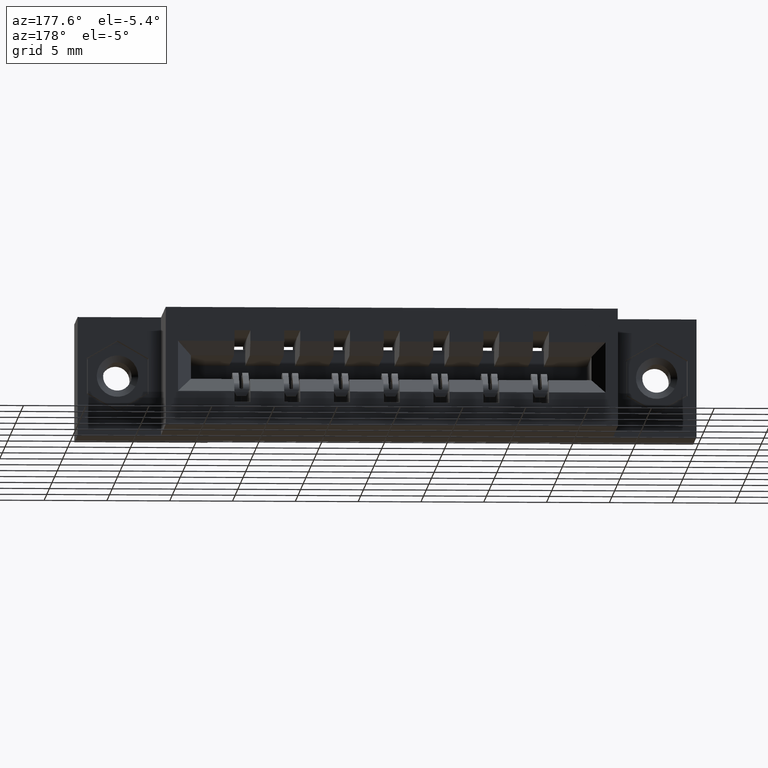
[diagram: clean part render]
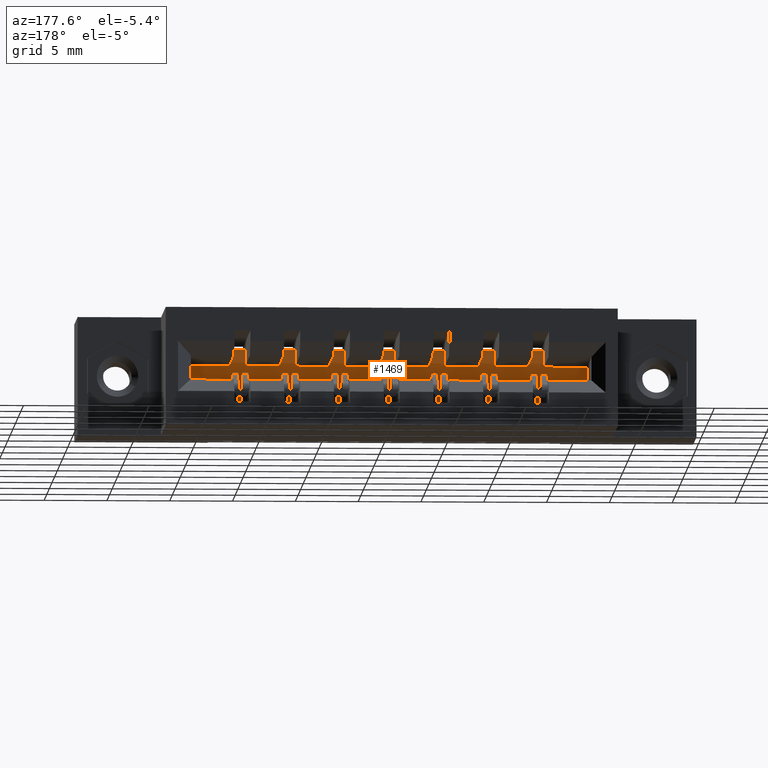
[diagram: same view with one face highlighted and labeled with its STEP entity id]
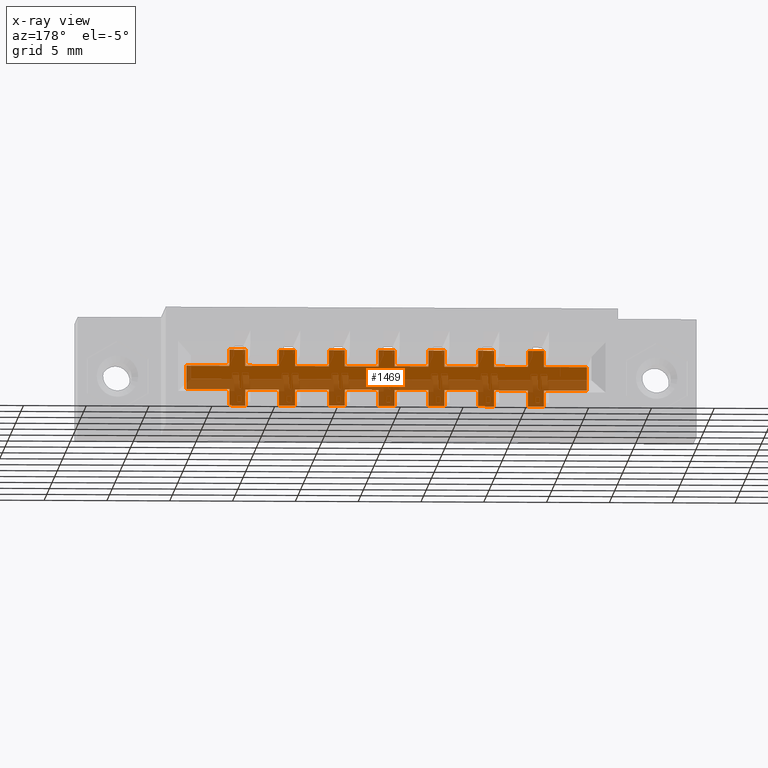
[diagram: x-ray of the same camera — body ghosted, the highlighted face saturated]
A machine part, auxiliary view. The second image highlights one B-rep face of the part: STEP entity #1469.
The next image is the same camera in x-ray: the body ghosted, the highlighted face saturated — about 46% of this face is hidden behind the body in this view.
In plain terms, the highlighted planar face has unit normal (0, -1, 0).
Its self-contained STEP definition (entity closure, byte-faithful):
#28 = EDGE_CURVE ( 'NONE', #4804, #4392, #6585, .T. ) ;
#103 = DIRECTION ( 'NONE',  ( -1.000000000000000000, -0.0000000000000000000, -1.087519105758066000E-016 ) ) ;
#105 = CARTESIAN_POINT ( 'NONE',  ( 0.3419999999999999200, 0.2119999999999999400, -0.1480000000000003000 ) ) ;
#131 = VECTOR ( 'NONE', #5296, 39.37007874015748100 ) ;
#134 = ORIENTED_EDGE ( 'NONE', *, *, #8198, .F. ) ;
#160 = VECTOR ( 'NONE', #5150, 39.37007874015748100 ) ;
#174 = DIRECTION ( 'NONE',  ( 1.000000000000000000, -0.0000000000000000000, -0.0000000000000000000 ) ) ;
#219 = CARTESIAN_POINT ( 'NONE',  ( 0.3419999999999999200, 0.2119999999999999400, -0.1480000000000003000 ) ) ;
#234 = CARTESIAN_POINT ( 'NONE',  ( 1.151000000000000000, 0.2119999999999999400, -0.2220000000000002800 ) ) ;
#245 = CARTESIAN_POINT ( 'NONE',  ( 0.8389999999999998600, 0.2119999999999998800, -0.09750000000000025300 ) ) ;
#248 = VECTOR ( 'NONE', #174, 39.37007874015748100 ) ;
#254 = LINE ( 'NONE', #4482, #6492 ) ;
#257 = VECTOR ( 'NONE', #847, 39.37007874015748100 ) ;
#301 = VERTEX_POINT ( 'NONE', #8854 ) ;
#310 = CARTESIAN_POINT ( 'NONE',  ( 0.3419999999999999200, 0.2119999999999999400, -0.1480000000000003000 ) ) ;
#324 = EDGE_CURVE ( 'NONE', #1465, #1154, #8236, .T. ) ;
#333 = DIRECTION ( 'NONE',  ( -0.0000000000000000000, -1.352399996863505500E-015, -1.000000000000000000 ) ) ;
#339 = ORIENTED_EDGE ( 'NONE', *, *, #367, .T. ) ;
#344 = EDGE_CURVE ( 'NONE', #3692, #5508, #5971, .T. ) ;
#355 = ORIENTED_EDGE ( 'NONE', *, *, #7211, .T. ) ;
#367 = EDGE_CURVE ( 'NONE', #8573, #5115, #8000, .T. ) ;
#379 = DIRECTION ( 'NONE',  ( -0.0000000000000000000, -1.352399996863505500E-015, -1.000000000000000000 ) ) ;
#389 = ORIENTED_EDGE ( 'NONE', *, *, #2098, .T. ) ;
#429 = LINE ( 'NONE', #7589, #7385 ) ;
#451 = CARTESIAN_POINT ( 'NONE',  ( 1.412999999999999600, 0.2119999999999999400, -0.2724999999999999600 ) ) ;
#503 = VERTEX_POINT ( 'NONE', #528 ) ;
#510 = CARTESIAN_POINT ( 'NONE',  ( 0.3419999999999999200, 0.2119999999999999400, -0.1480000000000003000 ) ) ;
#521 = VECTOR ( 'NONE', #4929, 39.37007874015748100 ) ;
#528 = CARTESIAN_POINT ( 'NONE',  ( 1.462999999999999600, 0.2119999999999998800, -0.09750000000000025300 ) ) ;
#542 = LINE ( 'NONE', #5319, #6788 ) ;
#577 = CARTESIAN_POINT ( 'NONE',  ( 0.3419999999999999200, 0.2119999999999999400, -0.1480000000000003000 ) ) ;
#581 = VERTEX_POINT ( 'NONE', #7129 ) ;
#596 = DIRECTION ( 'NONE',  ( 1.000000000000000000, -0.0000000000000000000, -0.0000000000000000000 ) ) ;
#601 = ORIENTED_EDGE ( 'NONE', *, *, #5022, .T. ) ;
#618 = VECTOR ( 'NONE', #7977, 39.37007874015748100 ) ;
#652 = VERTEX_POINT ( 'NONE', #8454 ) ;
#672 = CARTESIAN_POINT ( 'NONE',  ( 1.151000000000000000, 0.2119999999999999400, -0.1480000000000002100 ) ) ;
#678 = CARTESIAN_POINT ( 'NONE',  ( 0.9449999999999998400, 0.2119999999999998300, -0.1479999999999999400 ) ) ;
#697 = CARTESIAN_POINT ( 'NONE',  ( 1.101000000000000000, 0.2119999999999999400, -0.2220000000000002800 ) ) ;
#740 = DIRECTION ( 'NONE',  ( -0.0000000000000000000, -1.352399996863505500E-015, -1.000000000000000000 ) ) ;
#750 = DIRECTION ( 'NONE',  ( 0.0000000000000000000, 0.0000000000000000000, -1.000000000000000000 ) ) ;
#752 = CARTESIAN_POINT ( 'NONE',  ( 1.151000000000000000, 0.2119999999999998300, -0.1479999999999999400 ) ) ;
#760 = VECTOR ( 'NONE', #922, 39.37007874015748100 ) ;
#773 = LINE ( 'NONE', #7492, #4732 ) ;
#793 = VECTOR ( 'NONE', #6793, 39.37007874015748100 ) ;
#795 = CARTESIAN_POINT ( 'NONE',  ( 1.101000000000000000, 0.2119999999999998800, -0.09750000000000025300 ) ) ;
#832 = ORIENTED_EDGE ( 'NONE', *, *, #5621, .T. ) ;
#847 = DIRECTION ( 'NONE',  ( 1.000000000000000000, 0.0000000000000000000, 9.515792175383078700E-017 ) ) ;
#922 = DIRECTION ( 'NONE',  ( 0.0000000000000000000, 0.0000000000000000000, -1.000000000000000000 ) ) ;
#924 = EDGE_CURVE ( 'NONE', #8974, #7294, #2903, .T. ) ;
#963 = VECTOR ( 'NONE', #4655, 39.37007874015748100 ) ;
#974 = VECTOR ( 'NONE', #6464, 39.37007874015748100 ) ;
#987 = VERTEX_POINT ( 'NONE', #8114 ) ;
#988 = ORIENTED_EDGE ( 'NONE', *, *, #9462, .T. ) ;
#997 = VERTEX_POINT ( 'NONE', #1302 ) ;
#1014 = ORIENTED_EDGE ( 'NONE', *, *, #6208, .T. ) ;
#1075 = DIRECTION ( 'NONE',  ( -1.000000000000000000, -0.0000000000000000000, -1.087519105758066000E-016 ) ) ;
#1115 = CARTESIAN_POINT ( 'NONE',  ( 0.6829999999999999400, 0.2119999999999999400, -0.1480000000000002400 ) ) ;
#1154 = VERTEX_POINT ( 'NONE', #6767 ) ;
#1173 = EDGE_CURVE ( 'NONE', #8654, #301, #429, .T. ) ;
#1179 = EDGE_CURVE ( 'NONE', #8012, #3776, #2554, .T. ) ;
#1237 = LINE ( 'NONE', #8938, #5182 ) ;
#1239 = VECTOR ( 'NONE', #740, 39.37007874015748100 ) ;
#1248 = VECTOR ( 'NONE', #379, 39.37007874015748100 ) ;
#1251 = DIRECTION ( 'NONE',  ( 1.000000000000000000, -0.0000000000000000000, -0.0000000000000000000 ) ) ;
#1268 = CARTESIAN_POINT ( 'NONE',  ( 0.9949999999999998800, 0.2119999999999999400, -0.2220000000000002800 ) ) ;
#1284 = LINE ( 'NONE', #7342, #5231 ) ;
#1302 = CARTESIAN_POINT ( 'NONE',  ( 1.151000000000000000, 0.2119999999999998800, -0.09750000000000025300 ) ) ;
#1352 = VERTEX_POINT ( 'NONE', #9181 ) ;
#1389 = CARTESIAN_POINT ( 'NONE',  ( 0.4769999999999999200, 0.2119999999999999400, -0.2724999999999999600 ) ) ;
#1395 = LINE ( 'NONE', #9569, #1902 ) ;
#1417 = VERTEX_POINT ( 'NONE', #6487 ) ;
#1430 = CARTESIAN_POINT ( 'NONE',  ( 1.101000000000000000, 0.2119999999999998300, -0.1479999999999999400 ) ) ;
#1457 = EDGE_CURVE ( 'NONE', #4427, #7290, #9647, .T. ) ;
#1465 = VERTEX_POINT ( 'NONE', #9159 ) ;
#1469 = ADVANCED_FACE ( 'NONE', ( #5359 ), #5815, .F. ) ;
#1475 = VERTEX_POINT ( 'NONE', #6516 ) ;
#1485 = VERTEX_POINT ( 'NONE', #7772 ) ;
#1506 = LINE ( 'NONE', #3239, #3353 ) ;
#1530 = DIRECTION ( 'NONE',  ( 0.0000000000000000000, 0.0000000000000000000, -1.000000000000000000 ) ) ;
#1554 = VERTEX_POINT ( 'NONE', #697 ) ;
#1599 = EDGE_CURVE ( 'NONE', #8805, #987, #8456, .T. ) ;
#1606 = CARTESIAN_POINT ( 'NONE',  ( 0.5269999999999999100, 0.2119999999999998300, -0.1479999999999999400 ) ) ;
#1620 = VERTEX_POINT ( 'NONE', #1389 ) ;
#1645 = CARTESIAN_POINT ( 'NONE',  ( 0.3419999999999999200, 0.2119999999999999400, -0.1480000000000003000 ) ) ;
#1653 = EDGE_LOOP ( 'NONE', ( #6930, #3317, #2026, #4520, #134, #5288, #6588, #8059, #8995, #1890, #5232, #5582, #8770, #8223, #8741, #8287, #4030, #5663, #355, #1959, #5327, #6258, #1835, #4485, #2749, #7527, #3649, #2157, #4294, #7390, #988, #1727, #7405, #389, #9362, #601, #3750, #9970, #2476, #2902, #7372, #3730, #832, #8514, #8964, #6945, #5912, #4571, #7783, #9158, #1014, #2085, #6323, #8694, #3362, #339, #3946, #4408, #6462, #7221 ) ) ;
#1708 = VERTEX_POINT ( 'NONE', #5352 ) ;
#1727 = ORIENTED_EDGE ( 'NONE', *, *, #4977, .T. ) ;
#1761 = VECTOR ( 'NONE', #2881, 39.37007874015748100 ) ;
#1763 = LINE ( 'NONE', #7332, #9486 ) ;
#1765 = CARTESIAN_POINT ( 'NONE',  ( 1.412999999999999600, 0.2119999999999998800, -0.09750000000000025300 ) ) ;
#1788 = VECTOR ( 'NONE', #9280, 39.37007874015748100 ) ;
#1807 = EDGE_CURVE ( 'NONE', #7886, #8625, #2787, .T. ) ;
#1812 = CARTESIAN_POINT ( 'NONE',  ( 0.9449999999999998400, 0.2119999999999999400, -0.2724999999999999600 ) ) ;
#1821 = VERTEX_POINT ( 'NONE', #3294 ) ;
#1825 = VECTOR ( 'NONE', #8758, 39.37007874015748100 ) ;
#1827 = CARTESIAN_POINT ( 'NONE',  ( 0.6829999999999999400, 0.2119999999999999400, -0.2220000000000002800 ) ) ;
#1835 = ORIENTED_EDGE ( 'NONE', *, *, #2217, .T. ) ;
#1848 = LINE ( 'NONE', #5094, #9808 ) ;
#1854 = CARTESIAN_POINT ( 'NONE',  ( 0.4769999999999999200, 0.2119999999999999400, -0.2724999999999999600 ) ) ;
#1890 = ORIENTED_EDGE ( 'NONE', *, *, #924, .T. ) ;
#1902 = VECTOR ( 'NONE', #4199, 39.37007874015748100 ) ;
#1903 = VERTEX_POINT ( 'NONE', #1115 ) ;
#1959 = ORIENTED_EDGE ( 'NONE', *, *, #8366, .F. ) ;
#1968 = DIRECTION ( 'NONE',  ( 1.000000000000000000, -0.0000000000000000000, -0.0000000000000000000 ) ) ;
#2014 = LINE ( 'NONE', #451, #5917 ) ;
#2026 = ORIENTED_EDGE ( 'NONE', *, *, #8122, .T. ) ;
#2047 = VERTEX_POINT ( 'NONE', #8273 ) ;
#2066 = VERTEX_POINT ( 'NONE', #8310 ) ;
#2084 = EDGE_CURVE ( 'NONE', #5309, #4907, #2890, .T. ) ;
#2085 = ORIENTED_EDGE ( 'NONE', *, *, #2734, .T. ) ;
#2098 = EDGE_CURVE ( 'NONE', #2066, #8012, #542, .T. ) ;
#2122 = EDGE_CURVE ( 'NONE', #1554, #8805, #2651, .T. ) ;
#2124 = LINE ( 'NONE', #752, #4212 ) ;
#2146 = VERTEX_POINT ( 'NONE', #1430 ) ;
#2157 = ORIENTED_EDGE ( 'NONE', *, *, #3757, .F. ) ;
#2217 = EDGE_CURVE ( 'NONE', #9962, #4163, #7607, .T. ) ;
#2249 = VECTOR ( 'NONE', #8773, 39.37007874015748100 ) ;
#2257 = CARTESIAN_POINT ( 'NONE',  ( 1.598000000000000300, 0.2119999999999999400, -0.2220000000000001400 ) ) ;
#2319 = VECTOR ( 'NONE', #7099, 39.37007874015748100 ) ;
#2370 = CARTESIAN_POINT ( 'NONE',  ( 0.3419999999999999200, 0.2119999999999999400, -0.1480000000000003000 ) ) ;
#2393 = LINE ( 'NONE', #219, #521 ) ;
#2410 = VECTOR ( 'NONE', #7610, 39.37007874015748100 ) ;
#2466 = DIRECTION ( 'NONE',  ( 0.0000000000000000000, 0.0000000000000000000, -1.000000000000000000 ) ) ;
#2476 = ORIENTED_EDGE ( 'NONE', *, *, #9687, .T. ) ;
#2522 = VECTOR ( 'NONE', #2779, 39.37007874015748100 ) ;
#2554 = LINE ( 'NONE', #1606, #4376 ) ;
#2586 = CARTESIAN_POINT ( 'NONE',  ( 0.6329999999999999000, 0.2119999999999998300, -0.1479999999999999400 ) ) ;
#2588 = VECTOR ( 'NONE', #8830, 39.37007874015748100 ) ;
#2640 = CARTESIAN_POINT ( 'NONE',  ( 0.3419999999999999200, 0.2119999999999999400, -0.2220000000000002800 ) ) ;
#2651 = LINE ( 'NONE', #6853, #2410 ) ;
#2711 = DIRECTION ( 'NONE',  ( -1.000000000000000000, -0.0000000000000000000, -1.087519105758066000E-016 ) ) ;
#2729 = CARTESIAN_POINT ( 'NONE',  ( 1.101000000000000000, 0.2119999999999999400, -0.2724999999999999600 ) ) ;
#2734 = EDGE_CURVE ( 'NONE', #7674, #1485, #9153, .T. ) ;
#2749 = ORIENTED_EDGE ( 'NONE', *, *, #7680, .F. ) ;
#2750 = VECTOR ( 'NONE', #3523, 39.37007874015748100 ) ;
#2779 = DIRECTION ( 'NONE',  ( -0.0000000000000000000, -1.352399996863505500E-015, -1.000000000000000000 ) ) ;
#2787 = LINE ( 'NONE', #8715, #6682 ) ;
#2808 = VERTEX_POINT ( 'NONE', #9900 ) ;
#2831 = VERTEX_POINT ( 'NONE', #9932 ) ;
#2858 = DIRECTION ( 'NONE',  ( 1.000000000000000000, 0.0000000000000000000, 9.515792175383078700E-017 ) ) ;
#2861 = LINE ( 'NONE', #6389, #760 ) ;
#2881 = DIRECTION ( 'NONE',  ( -0.0000000000000000000, -1.352399996863505500E-015, -1.000000000000000000 ) ) ;
#2890 = LINE ( 'NONE', #5285, #793 ) ;
#2902 = ORIENTED_EDGE ( 'NONE', *, *, #6840, .T. ) ;
#2903 = LINE ( 'NONE', #4441, #4774 ) ;
#2919 = CARTESIAN_POINT ( 'NONE',  ( 0.6829999999999999400, 0.2119999999999998300, -0.1479999999999999400 ) ) ;
#2970 = VECTOR ( 'NONE', #3895, 39.37007874015748100 ) ;
#3062 = DIRECTION ( 'NONE',  ( 0.0000000000000000000, -0.0000000000000000000, -1.000000000000000000 ) ) ;
#3068 = VERTEX_POINT ( 'NONE', #6433 ) ;
#3105 = CARTESIAN_POINT ( 'NONE',  ( 0.7889999999999998100, 0.2119999999999999400, -0.2724999999999999600 ) ) ;
#3239 = CARTESIAN_POINT ( 'NONE',  ( 0.3419999999999999200, 0.2119999999999999400, -0.2220000000000002800 ) ) ;
#3294 = CARTESIAN_POINT ( 'NONE',  ( 0.9449999999999998400, 0.2119999999999999400, -0.2220000000000002800 ) ) ;
#3312 = LINE ( 'NONE', #678, #963 ) ;
#3317 = ORIENTED_EDGE ( 'NONE', *, *, #5207, .T. ) ;
#3323 = CARTESIAN_POINT ( 'NONE',  ( 1.412999999999999600, 0.2119999999999998300, -0.1479999999999999400 ) ) ;
#3339 = LINE ( 'NONE', #4685, #1239 ) ;
#3353 = VECTOR ( 'NONE', #103, 39.37007874015748100 ) ;
#3362 = ORIENTED_EDGE ( 'NONE', *, *, #4478, .T. ) ;
#3369 = VECTOR ( 'NONE', #4776, 39.37007874015748100 ) ;
#3523 = DIRECTION ( 'NONE',  ( 1.000000000000000000, -0.0000000000000000000, -0.0000000000000000000 ) ) ;
#3573 = VERTEX_POINT ( 'NONE', #4761 ) ;
#3621 = LINE ( 'NONE', #7045, #3369 ) ;
#3645 = CARTESIAN_POINT ( 'NONE',  ( 0.8389999999999998600, 0.2119999999999999400, -0.2220000000000002800 ) ) ;
#3649 = ORIENTED_EDGE ( 'NONE', *, *, #8462, .T. ) ;
#3662 = VECTOR ( 'NONE', #8473, 39.37007874015748100 ) ;
#3678 = CARTESIAN_POINT ( 'NONE',  ( 1.598000000000000300, 0.2119999999999999400, -0.2220000000000001400 ) ) ;
#3692 = VERTEX_POINT ( 'NONE', #7159 ) ;
#3730 = ORIENTED_EDGE ( 'NONE', *, *, #1807, .T. ) ;
#3731 = LINE ( 'NONE', #1854, #6289 ) ;
#3750 = ORIENTED_EDGE ( 'NONE', *, *, #1457, .F. ) ;
#3757 = EDGE_CURVE ( 'NONE', #1620, #8558, #3731, .T. ) ;
#3776 = VERTEX_POINT ( 'NONE', #8820 ) ;
#3824 = VECTOR ( 'NONE', #2466, 39.37007874015748100 ) ;
#3834 = DIRECTION ( 'NONE',  ( 0.0000000000000000000, 0.0000000000000000000, -1.000000000000000000 ) ) ;
#3865 = VERTEX_POINT ( 'NONE', #7406 ) ;
#3875 = CARTESIAN_POINT ( 'NONE',  ( 0.7889999999999998100, 0.2119999999999999400, -0.2724999999999999600 ) ) ;
#3877 = EDGE_CURVE ( 'NONE', #503, #4627, #6399, .T. ) ;
#3887 = DIRECTION ( 'NONE',  ( -0.0000000000000000000, -1.352399996863505500E-015, -1.000000000000000000 ) ) ;
#3895 = DIRECTION ( 'NONE',  ( 1.000000000000000000, -0.0000000000000000000, -0.0000000000000000000 ) ) ;
#3904 = EDGE_CURVE ( 'NONE', #1417, #4351, #4340, .T. ) ;
#3943 = EDGE_CURVE ( 'NONE', #1475, #5647, #2014, .T. ) ;
#3946 = ORIENTED_EDGE ( 'NONE', *, *, #7933, .F. ) ;
#4030 = ORIENTED_EDGE ( 'NONE', *, *, #7090, .F. ) ;
#4032 = VERTEX_POINT ( 'NONE', #9078 ) ;
#4039 = CARTESIAN_POINT ( 'NONE',  ( 0.5269999999999999100, 0.2119999999999999400, -0.2220000000000002800 ) ) ;
#4058 = CARTESIAN_POINT ( 'NONE',  ( 0.8389999999999998600, 0.2119999999999999400, -0.2220000000000002800 ) ) ;
#4163 = VERTEX_POINT ( 'NONE', #6240 ) ;
#4199 = DIRECTION ( 'NONE',  ( 0.0000000000000000000, 0.0000000000000000000, -1.000000000000000000 ) ) ;
#4212 = VECTOR ( 'NONE', #3887, 39.37007874015748100 ) ;
#4266 = DIRECTION ( 'NONE',  ( 1.000000000000000000, -0.0000000000000000000, -0.0000000000000000000 ) ) ;
#4294 = ORIENTED_EDGE ( 'NONE', *, *, #7234, .F. ) ;
#4301 = CARTESIAN_POINT ( 'NONE',  ( 1.306999999999999700, 0.2119999999999998300, -0.1479999999999999400 ) ) ;
#4329 = LINE ( 'NONE', #1812, #2249 ) ;
#4340 = LINE ( 'NONE', #9712, #160 ) ;
#4349 = CARTESIAN_POINT ( 'NONE',  ( 0.7889999999999998100, 0.2119999999999999400, -0.2220000000000002800 ) ) ;
#4351 = VERTEX_POINT ( 'NONE', #7975 ) ;
#4367 = EDGE_CURVE ( 'NONE', #5918, #987, #4329, .T. ) ;
#4376 = VECTOR ( 'NONE', #333, 39.37007874015748100 ) ;
#4392 = VERTEX_POINT ( 'NONE', #8027 ) ;
#4408 = ORIENTED_EDGE ( 'NONE', *, *, #9089, .T. ) ;
#4427 = VERTEX_POINT ( 'NONE', #5807 ) ;
#4432 = LINE ( 'NONE', #1645, #257 ) ;
#4439 = VECTOR ( 'NONE', #4681, 39.37007874015748100 ) ;
#4441 = CARTESIAN_POINT ( 'NONE',  ( 0.3419999999999999200, 0.2119999999999999400, -0.2220000000000002800 ) ) ;
#4450 = EDGE_CURVE ( 'NONE', #2808, #4163, #1763, .T. ) ;
#4478 = EDGE_CURVE ( 'NONE', #301, #8573, #5680, .T. ) ;
#4482 = CARTESIAN_POINT ( 'NONE',  ( 1.412999999999999600, 0.2119999999999999400, -0.2220000000000002800 ) ) ;
#4485 = ORIENTED_EDGE ( 'NONE', *, *, #4450, .F. ) ;
#4514 = VECTOR ( 'NONE', #4744, 39.37007874015748100 ) ;
#4520 = ORIENTED_EDGE ( 'NONE', *, *, #3943, .F. ) ;
#4538 = VECTOR ( 'NONE', #7145, 39.37007874015748100 ) ;
#4550 = VECTOR ( 'NONE', #8319, 39.37007874015748100 ) ;
#4571 = ORIENTED_EDGE ( 'NONE', *, *, #5795, .T. ) ;
#4579 = VECTOR ( 'NONE', #9240, 39.37007874015748100 ) ;
#4627 = VERTEX_POINT ( 'NONE', #5277 ) ;
#4631 = CARTESIAN_POINT ( 'NONE',  ( 0.5269999999999999100, 0.2119999999999999400, -0.2220000000000002800 ) ) ;
#4655 = DIRECTION ( 'NONE',  ( -0.0000000000000000000, -1.352399996863505500E-015, -1.000000000000000000 ) ) ;
#4681 = DIRECTION ( 'NONE',  ( 0.0000000000000000000, 0.0000000000000000000, -1.000000000000000000 ) ) ;
#4685 = CARTESIAN_POINT ( 'NONE',  ( 1.101000000000000000, 0.2119999999999998300, -0.1479999999999999400 ) ) ;
#4686 = LINE ( 'NONE', #310, #8502 ) ;
#4710 = VECTOR ( 'NONE', #3834, 39.37007874015748100 ) ;
#4732 = VECTOR ( 'NONE', #2858, 39.37007874015748100 ) ;
#4744 = DIRECTION ( 'NONE',  ( 0.0000000000000000000, 0.0000000000000000000, -1.000000000000000000 ) ) ;
#4761 = CARTESIAN_POINT ( 'NONE',  ( 0.7889999999999998100, 0.2119999999999998300, -0.1479999999999999400 ) ) ;
#4774 = VECTOR ( 'NONE', #6586, 39.37007874015748100 ) ;
#4776 = DIRECTION ( 'NONE',  ( -0.0000000000000000000, -1.352399996863505500E-015, -1.000000000000000000 ) ) ;
#4804 = VERTEX_POINT ( 'NONE', #8353 ) ;
#4807 = DIRECTION ( 'NONE',  ( 1.000000000000000000, -0.0000000000000000000, -0.0000000000000000000 ) ) ;
#4826 = LINE ( 'NONE', #3105, #2970 ) ;
#4850 = LINE ( 'NONE', #2729, #2750 ) ;
#4853 = VECTOR ( 'NONE', #5243, 39.37007874015748100 ) ;
#4907 = VERTEX_POINT ( 'NONE', #3875 ) ;
#4909 = CARTESIAN_POINT ( 'NONE',  ( 1.412999999999999600, 0.2119999999999998300, -0.1479999999999999400 ) ) ;
#4917 = EDGE_CURVE ( 'NONE', #6425, #2146, #3339, .T. ) ;
#4918 = DIRECTION ( 'NONE',  ( 0.0000000000000000000, 0.0000000000000000000, -1.000000000000000000 ) ) ;
#4921 = LINE ( 'NONE', #5764, #2588 ) ;
#4929 = DIRECTION ( 'NONE',  ( 1.000000000000000000, 0.0000000000000000000, 9.515792175383078700E-017 ) ) ;
#4953 = VECTOR ( 'NONE', #8661, 39.37007874015748100 ) ;
#4977 = EDGE_CURVE ( 'NONE', #2831, #2047, #8759, .T. ) ;
#5022 = EDGE_CURVE ( 'NONE', #3776, #7290, #4432, .T. ) ;
#5038 = CARTESIAN_POINT ( 'NONE',  ( 1.256999999999999700, 0.2119999999999999400, -0.2724999999999999600 ) ) ;
#5094 = CARTESIAN_POINT ( 'NONE',  ( 0.6329999999999999000, 0.2119999999999998800, -0.09750000000000025300 ) ) ;
#5115 = VERTEX_POINT ( 'NONE', #4909 ) ;
#5146 = DIRECTION ( 'NONE',  ( 0.0000000000000000000, 0.0000000000000000000, -1.000000000000000000 ) ) ;
#5150 = DIRECTION ( 'NONE',  ( -1.000000000000000000, -0.0000000000000000000, -1.087519105758066000E-016 ) ) ;
#5182 = VECTOR ( 'NONE', #5146, 39.37007874015748100 ) ;
#5198 = CARTESIAN_POINT ( 'NONE',  ( 1.412999999999999600, 0.2119999999999999400, -0.2220000000000002800 ) ) ;
#5207 = EDGE_CURVE ( 'NONE', #5508, #7407, #1284, .T. ) ;
#5231 = VECTOR ( 'NONE', #2711, 39.37007874015748100 ) ;
#5232 = ORIENTED_EDGE ( 'NONE', *, *, #7323, .T. ) ;
#5243 = DIRECTION ( 'NONE',  ( 1.000000000000000000, 0.0000000000000000000, 9.515792175383078700E-017 ) ) ;
#5277 = CARTESIAN_POINT ( 'NONE',  ( 1.462999999999999600, 0.2119999999999999400, -0.1480000000000001900 ) ) ;
#5285 = CARTESIAN_POINT ( 'NONE',  ( 0.7889999999999998100, 0.2119999999999999400, -0.2220000000000002800 ) ) ;
#5288 = ORIENTED_EDGE ( 'NONE', *, *, #8021, .T. ) ;
#5296 = DIRECTION ( 'NONE',  ( 1.000000000000000000, 0.0000000000000000000, 9.515792175383078700E-017 ) ) ;
#5309 = VERTEX_POINT ( 'NONE', #4349 ) ;
#5319 = CARTESIAN_POINT ( 'NONE',  ( 0.4769999999999999200, 0.2119999999999998800, -0.09750000000000025300 ) ) ;
#5325 = VERTEX_POINT ( 'NONE', #6717 ) ;
#5327 = ORIENTED_EDGE ( 'NONE', *, *, #2084, .F. ) ;
#5352 = CARTESIAN_POINT ( 'NONE',  ( 0.9449999999999998400, 0.2119999999999998300, -0.1479999999999999400 ) ) ;
#5359 = FACE_OUTER_BOUND ( 'NONE', #1653, .T. ) ;
#5394 = CARTESIAN_POINT ( 'NONE',  ( 1.598000000000000300, 0.2119999999999999400, -0.1480000000000001600 ) ) ;
#5450 = CARTESIAN_POINT ( 'NONE',  ( 1.101000000000000000, 0.2119999999999998800, -0.09750000000000025300 ) ) ;
#5466 = EDGE_CURVE ( 'NONE', #1821, #9645, #7133, .T. ) ;
#5496 = AXIS2_PLACEMENT_3D ( 'NONE', #3678, #8821, #3062 ) ;
#5508 = VERTEX_POINT ( 'NONE', #2257 ) ;
#5577 = EDGE_CURVE ( 'NONE', #6425, #997, #5933, .T. ) ;
#5582 = ORIENTED_EDGE ( 'NONE', *, *, #5921, .F. ) ;
#5605 = VECTOR ( 'NONE', #7020, 39.37007874015748100 ) ;
#5621 = EDGE_CURVE ( 'NONE', #8625, #1352, #3621, .T. ) ;
#5647 = VERTEX_POINT ( 'NONE', #7079 ) ;
#5663 = ORIENTED_EDGE ( 'NONE', *, *, #5466, .T. ) ;
#5680 = LINE ( 'NONE', #4301, #1248 ) ;
#5764 = CARTESIAN_POINT ( 'NONE',  ( 0.3419999999999999200, 0.2119999999999999400, -0.1480000000000003000 ) ) ;
#5795 = EDGE_CURVE ( 'NONE', #4392, #2146, #2393, .T. ) ;
#5807 = CARTESIAN_POINT ( 'NONE',  ( 0.6329999999999999000, 0.2119999999999998800, -0.09750000000000025300 ) ) ;
#5815 = PLANE ( 'NONE',  #5496 ) ;
#5838 = CARTESIAN_POINT ( 'NONE',  ( 0.9449999999999998400, 0.2119999999999999400, -0.2724999999999999600 ) ) ;
#5860 = EDGE_CURVE ( 'NONE', #1554, #5325, #1395, .T. ) ;
#5896 = LINE ( 'NONE', #5038, #9474 ) ;
#5912 = ORIENTED_EDGE ( 'NONE', *, *, #28, .T. ) ;
#5917 = VECTOR ( 'NONE', #1251, 39.37007874015748100 ) ;
#5918 = VERTEX_POINT ( 'NONE', #5838 ) ;
#5921 = EDGE_CURVE ( 'NONE', #5325, #652, #4850, .T. ) ;
#5933 = LINE ( 'NONE', #5450, #1788 ) ;
#5971 = LINE ( 'NONE', #5394, #1825 ) ;
#6208 = EDGE_CURVE ( 'NONE', #997, #7674, #2124, .T. ) ;
#6240 = CARTESIAN_POINT ( 'NONE',  ( 0.6829999999999999400, 0.2119999999999999400, -0.2724999999999999600 ) ) ;
#6245 = LINE ( 'NONE', #1765, #248 ) ;
#6258 = ORIENTED_EDGE ( 'NONE', *, *, #8443, .T. ) ;
#6289 = VECTOR ( 'NONE', #7279, 39.37007874015748100 ) ;
#6323 = ORIENTED_EDGE ( 'NONE', *, *, #8377, .F. ) ;
#6331 = VERTEX_POINT ( 'NONE', #6917 ) ;
#6375 = LINE ( 'NONE', #2640, #7922 ) ;
#6389 = CARTESIAN_POINT ( 'NONE',  ( 0.4769999999999999200, 0.2119999999999999400, -0.2220000000000002800 ) ) ;
#6399 = LINE ( 'NONE', #8142, #2522 ) ;
#6400 = CARTESIAN_POINT ( 'NONE',  ( 1.306999999999999700, 0.2119999999999999400, -0.2220000000000002800 ) ) ;
#6425 = VERTEX_POINT ( 'NONE', #795 ) ;
#6433 = CARTESIAN_POINT ( 'NONE',  ( 1.412999999999999600, 0.2119999999999998800, -0.09750000000000025300 ) ) ;
#6462 = ORIENTED_EDGE ( 'NONE', *, *, #3877, .T. ) ;
#6464 = DIRECTION ( 'NONE',  ( -0.0000000000000000000, -1.352399996863505500E-015, -1.000000000000000000 ) ) ;
#6472 = VERTEX_POINT ( 'NONE', #7837 ) ;
#6487 = CARTESIAN_POINT ( 'NONE',  ( 0.4769999999999999200, 0.2119999999999999400, -0.2220000000000002800 ) ) ;
#6492 = VECTOR ( 'NONE', #9834, 39.37007874015748100 ) ;
#6500 = CARTESIAN_POINT ( 'NONE',  ( 0.4769999999999999200, 0.2119999999999998300, -0.1479999999999999400 ) ) ;
#6514 = CARTESIAN_POINT ( 'NONE',  ( 0.5269999999999999100, 0.2119999999999998800, -0.09750000000000025300 ) ) ;
#6516 = CARTESIAN_POINT ( 'NONE',  ( 1.412999999999999600, 0.2119999999999999400, -0.2724999999999999600 ) ) ;
#6571 = DIRECTION ( 'NONE',  ( 1.000000000000000000, -0.0000000000000000000, -0.0000000000000000000 ) ) ;
#6585 = LINE ( 'NONE', #9177, #4538 ) ;
#6586 = DIRECTION ( 'NONE',  ( -1.000000000000000000, -0.0000000000000000000, -1.087519105758066000E-016 ) ) ;
#6588 = ORIENTED_EDGE ( 'NONE', *, *, #324, .T. ) ;
#6682 = VECTOR ( 'NONE', #4807, 39.37007874015748100 ) ;
#6717 = CARTESIAN_POINT ( 'NONE',  ( 1.101000000000000000, 0.2119999999999999400, -0.2724999999999999600 ) ) ;
#6739 = VECTOR ( 'NONE', #8553, 39.37007874015748100 ) ;
#6747 = LINE ( 'NONE', #6927, #4710 ) ;
#6767 = CARTESIAN_POINT ( 'NONE',  ( 1.306999999999999700, 0.2119999999999999400, -0.2724999999999999600 ) ) ;
#6788 = VECTOR ( 'NONE', #596, 39.37007874015748100 ) ;
#6793 = DIRECTION ( 'NONE',  ( 0.0000000000000000000, 0.0000000000000000000, -1.000000000000000000 ) ) ;
#6840 = EDGE_CURVE ( 'NONE', #1903, #3573, #773, .T. ) ;
#6847 = DIRECTION ( 'NONE',  ( -1.000000000000000000, -0.0000000000000000000, -1.087519105758066000E-016 ) ) ;
#6853 = CARTESIAN_POINT ( 'NONE',  ( 0.3419999999999999200, 0.2119999999999999400, -0.2220000000000002800 ) ) ;
#6862 = LINE ( 'NONE', #3323, #618 ) ;
#6868 = DIRECTION ( 'NONE',  ( 1.000000000000000000, -0.0000000000000000000, -0.0000000000000000000 ) ) ;
#6881 = LINE ( 'NONE', #10015, #8423 ) ;
#6917 = CARTESIAN_POINT ( 'NONE',  ( 0.9449999999999998400, 0.2119999999999998800, -0.09750000000000025300 ) ) ;
#6927 = CARTESIAN_POINT ( 'NONE',  ( 0.6329999999999999000, 0.2119999999999999400, -0.2220000000000002800 ) ) ;
#6930 = ORIENTED_EDGE ( 'NONE', *, *, #344, .T. ) ;
#6945 = ORIENTED_EDGE ( 'NONE', *, *, #8933, .T. ) ;
#6998 = LINE ( 'NONE', #4058, #4953 ) ;
#7020 = DIRECTION ( 'NONE',  ( -0.0000000000000000000, -1.352399996863505500E-015, -1.000000000000000000 ) ) ;
#7042 = DIRECTION ( 'NONE',  ( -1.000000000000000000, -0.0000000000000000000, -1.087519105758066000E-016 ) ) ;
#7045 = CARTESIAN_POINT ( 'NONE',  ( 0.8389999999999998600, 0.2119999999999998300, -0.1479999999999999400 ) ) ;
#7079 = CARTESIAN_POINT ( 'NONE',  ( 1.462999999999999600, 0.2119999999999999400, -0.2724999999999999600 ) ) ;
#7090 = EDGE_CURVE ( 'NONE', #1821, #5918, #6881, .T. ) ;
#7099 = DIRECTION ( 'NONE',  ( 0.0000000000000000000, 0.0000000000000000000, -1.000000000000000000 ) ) ;
#7129 = CARTESIAN_POINT ( 'NONE',  ( 0.6329999999999999000, 0.2119999999999999400, -0.2220000000000002800 ) ) ;
#7133 = LINE ( 'NONE', #9905, #8916 ) ;
#7145 = DIRECTION ( 'NONE',  ( -0.0000000000000000000, -1.352399996863505500E-015, -1.000000000000000000 ) ) ;
#7159 = CARTESIAN_POINT ( 'NONE',  ( 1.598000000000000300, 0.2119999999999999400, -0.1480000000000001600 ) ) ;
#7182 = EDGE_CURVE ( 'NONE', #581, #8338, #1506, .T. ) ;
#7211 = EDGE_CURVE ( 'NONE', #9645, #4032, #6998, .T. ) ;
#7221 = ORIENTED_EDGE ( 'NONE', *, *, #8900, .T. ) ;
#7234 = EDGE_CURVE ( 'NONE', #1417, #1620, #2861, .T. ) ;
#7279 = DIRECTION ( 'NONE',  ( 1.000000000000000000, -0.0000000000000000000, -0.0000000000000000000 ) ) ;
#7290 = VERTEX_POINT ( 'NONE', #2586 ) ;
#7294 = VERTEX_POINT ( 'NONE', #7989 ) ;
#7323 = EDGE_CURVE ( 'NONE', #7294, #652, #8534, .T. ) ;
#7325 = CARTESIAN_POINT ( 'NONE',  ( 1.256999999999999700, 0.2119999999999998800, -0.09750000000000025300 ) ) ;
#7332 = CARTESIAN_POINT ( 'NONE',  ( 0.6329999999999999000, 0.2119999999999999400, -0.2724999999999999600 ) ) ;
#7342 = CARTESIAN_POINT ( 'NONE',  ( 0.3419999999999999200, 0.2119999999999999400, -0.2220000000000002800 ) ) ;
#7368 = VECTOR ( 'NONE', #1530, 39.37007874015748100 ) ;
#7372 = ORIENTED_EDGE ( 'NONE', *, *, #7570, .F. ) ;
#7385 = VECTOR ( 'NONE', #6571, 39.37007874015748100 ) ;
#7390 = ORIENTED_EDGE ( 'NONE', *, *, #3904, .T. ) ;
#7405 = ORIENTED_EDGE ( 'NONE', *, *, #9424, .F. ) ;
#7406 = CARTESIAN_POINT ( 'NONE',  ( 1.256999999999999700, 0.2119999999999999400, -0.2724999999999999600 ) ) ;
#7407 = VERTEX_POINT ( 'NONE', #8081 ) ;
#7492 = CARTESIAN_POINT ( 'NONE',  ( 0.3419999999999999200, 0.2119999999999999400, -0.1480000000000003000 ) ) ;
#7527 = ORIENTED_EDGE ( 'NONE', *, *, #7182, .T. ) ;
#7538 = CARTESIAN_POINT ( 'NONE',  ( 0.6329999999999999000, 0.2119999999999998300, -0.1479999999999999400 ) ) ;
#7570 = EDGE_CURVE ( 'NONE', #7886, #3573, #8170, .T. ) ;
#7589 = CARTESIAN_POINT ( 'NONE',  ( 1.256999999999999700, 0.2119999999999998800, -0.09750000000000025300 ) ) ;
#7607 = LINE ( 'NONE', #7750, #7368 ) ;
#7610 = DIRECTION ( 'NONE',  ( -1.000000000000000000, -0.0000000000000000000, -1.087519105758066000E-016 ) ) ;
#7674 = VERTEX_POINT ( 'NONE', #672 ) ;
#7679 = VECTOR ( 'NONE', #6868, 39.37007874015748100 ) ;
#7680 = EDGE_CURVE ( 'NONE', #581, #2808, #6747, .T. ) ;
#7707 = EDGE_CURVE ( 'NONE', #8974, #3865, #8526, .T. ) ;
#7750 = CARTESIAN_POINT ( 'NONE',  ( 0.6829999999999999400, 0.2119999999999999400, -0.2220000000000002800 ) ) ;
#7772 = CARTESIAN_POINT ( 'NONE',  ( 1.256999999999999700, 0.2119999999999998300, -0.1479999999999999400 ) ) ;
#7783 = ORIENTED_EDGE ( 'NONE', *, *, #4917, .F. ) ;
#7837 = CARTESIAN_POINT ( 'NONE',  ( 0.6829999999999999400, 0.2119999999999998800, -0.09750000000000025300 ) ) ;
#7886 = VERTEX_POINT ( 'NONE', #8684 ) ;
#7922 = VECTOR ( 'NONE', #1075, 39.37007874015748100 ) ;
#7924 = LINE ( 'NONE', #4039, #3824 ) ;
#7933 = EDGE_CURVE ( 'NONE', #3068, #5115, #6862, .T. ) ;
#7968 = CARTESIAN_POINT ( 'NONE',  ( 0.5269999999999999100, 0.2119999999999999400, -0.2724999999999999600 ) ) ;
#7975 = CARTESIAN_POINT ( 'NONE',  ( 0.3419999999999999200, 0.2119999999999999400, -0.2220000000000002800 ) ) ;
#7977 = DIRECTION ( 'NONE',  ( -0.0000000000000000000, -1.352399996863505500E-015, -1.000000000000000000 ) ) ;
#7989 = CARTESIAN_POINT ( 'NONE',  ( 1.151000000000000000, 0.2119999999999999400, -0.2220000000000002800 ) ) ;
#8000 = LINE ( 'NONE', #105, #3662 ) ;
#8012 = VERTEX_POINT ( 'NONE', #6514 ) ;
#8021 = EDGE_CURVE ( 'NONE', #8785, #1465, #6375, .T. ) ;
#8027 = CARTESIAN_POINT ( 'NONE',  ( 0.9949999999999998800, 0.2119999999999999400, -0.1480000000000002100 ) ) ;
#8059 = ORIENTED_EDGE ( 'NONE', *, *, #8079, .F. ) ;
#8079 = EDGE_CURVE ( 'NONE', #3865, #1154, #5896, .T. ) ;
#8081 = CARTESIAN_POINT ( 'NONE',  ( 1.462999999999999600, 0.2119999999999999400, -0.2220000000000002800 ) ) ;
#8114 = CARTESIAN_POINT ( 'NONE',  ( 0.9949999999999998800, 0.2119999999999999400, -0.2724999999999999600 ) ) ;
#8122 = EDGE_CURVE ( 'NONE', #7407, #5647, #1237, .T. ) ;
#8142 = CARTESIAN_POINT ( 'NONE',  ( 1.462999999999999600, 0.2119999999999998300, -0.1479999999999999400 ) ) ;
#8151 = LINE ( 'NONE', #577, #131 ) ;
#8162 = LINE ( 'NONE', #8608, #9954 ) ;
#8170 = LINE ( 'NONE', #9053, #1761 ) ;
#8198 = EDGE_CURVE ( 'NONE', #8785, #1475, #254, .T. ) ;
#8223 = ORIENTED_EDGE ( 'NONE', *, *, #2122, .T. ) ;
#8236 = LINE ( 'NONE', #6400, #2319 ) ;
#8273 = CARTESIAN_POINT ( 'NONE',  ( 0.4769999999999999200, 0.2119999999999998300, -0.1479999999999999400 ) ) ;
#8287 = ORIENTED_EDGE ( 'NONE', *, *, #4367, .F. ) ;
#8293 = VECTOR ( 'NONE', #4918, 39.37007874015748100 ) ;
#8310 = CARTESIAN_POINT ( 'NONE',  ( 0.4769999999999999200, 0.2119999999999998800, -0.09750000000000025300 ) ) ;
#8319 = DIRECTION ( 'NONE',  ( -0.0000000000000000000, -1.352399996863505500E-015, -1.000000000000000000 ) ) ;
#8338 = VERTEX_POINT ( 'NONE', #4631 ) ;
#8353 = CARTESIAN_POINT ( 'NONE',  ( 0.9949999999999998800, 0.2119999999999998800, -0.09750000000000025300 ) ) ;
#8366 = EDGE_CURVE ( 'NONE', #4907, #4032, #4826, .T. ) ;
#8376 = LINE ( 'NONE', #2919, #4550 ) ;
#8377 = EDGE_CURVE ( 'NONE', #8654, #1485, #8651, .T. ) ;
#8423 = VECTOR ( 'NONE', #750, 39.37007874015748100 ) ;
#8426 = CARTESIAN_POINT ( 'NONE',  ( 1.256999999999999700, 0.2119999999999999400, -0.2220000000000002800 ) ) ;
#8443 = EDGE_CURVE ( 'NONE', #5309, #9962, #8162, .T. ) ;
#8454 = CARTESIAN_POINT ( 'NONE',  ( 1.151000000000000000, 0.2119999999999999400, -0.2724999999999999600 ) ) ;
#8456 = LINE ( 'NONE', #8711, #4514 ) ;
#8462 = EDGE_CURVE ( 'NONE', #8338, #8558, #7924, .T. ) ;
#8473 = DIRECTION ( 'NONE',  ( 1.000000000000000000, 0.0000000000000000000, 9.515792175383078700E-017 ) ) ;
#8502 = VECTOR ( 'NONE', #9592, 39.37007874015748100 ) ;
#8514 = ORIENTED_EDGE ( 'NONE', *, *, #9471, .T. ) ;
#8526 = LINE ( 'NONE', #10006, #4439 ) ;
#8534 = LINE ( 'NONE', #234, #8293 ) ;
#8553 = DIRECTION ( 'NONE',  ( 1.000000000000000000, 0.0000000000000000000, 9.515792175383078700E-017 ) ) ;
#8558 = VERTEX_POINT ( 'NONE', #7968 ) ;
#8573 = VERTEX_POINT ( 'NONE', #8735 ) ;
#8608 = CARTESIAN_POINT ( 'NONE',  ( 0.3419999999999999200, 0.2119999999999999400, -0.2220000000000002800 ) ) ;
#8625 = VERTEX_POINT ( 'NONE', #245 ) ;
#8651 = LINE ( 'NONE', #9274, #4579 ) ;
#8654 = VERTEX_POINT ( 'NONE', #7325 ) ;
#8661 = DIRECTION ( 'NONE',  ( 0.0000000000000000000, 0.0000000000000000000, -1.000000000000000000 ) ) ;
#8684 = CARTESIAN_POINT ( 'NONE',  ( 0.7889999999999998100, 0.2119999999999998800, -0.09750000000000025300 ) ) ;
#8694 = ORIENTED_EDGE ( 'NONE', *, *, #1173, .T. ) ;
#8711 = CARTESIAN_POINT ( 'NONE',  ( 0.9949999999999998800, 0.2119999999999999400, -0.2220000000000002800 ) ) ;
#8715 = CARTESIAN_POINT ( 'NONE',  ( 0.7889999999999998100, 0.2119999999999998800, -0.09750000000000025300 ) ) ;
#8735 = CARTESIAN_POINT ( 'NONE',  ( 1.306999999999999700, 0.2119999999999999400, -0.1480000000000002100 ) ) ;
#8741 = ORIENTED_EDGE ( 'NONE', *, *, #1599, .T. ) ;
#8758 = DIRECTION ( 'NONE',  ( 0.0000000000000000000, 0.0000000000000000000, -1.000000000000000000 ) ) ;
#8759 = LINE ( 'NONE', #2370, #6739 ) ;
#8770 = ORIENTED_EDGE ( 'NONE', *, *, #5860, .F. ) ;
#8773 = DIRECTION ( 'NONE',  ( 1.000000000000000000, -0.0000000000000000000, -0.0000000000000000000 ) ) ;
#8785 = VERTEX_POINT ( 'NONE', #5198 ) ;
#8805 = VERTEX_POINT ( 'NONE', #1268 ) ;
#8820 = CARTESIAN_POINT ( 'NONE',  ( 0.5269999999999999100, 0.2119999999999998300, -0.1479999999999999400 ) ) ;
#8821 = DIRECTION ( 'NONE',  ( 0.0000000000000000000, -1.000000000000000000, 0.0000000000000000000 ) ) ;
#8830 = DIRECTION ( 'NONE',  ( -0.0000000000000000000, -0.0000000000000000000, 1.000000000000000000 ) ) ;
#8854 = CARTESIAN_POINT ( 'NONE',  ( 1.306999999999999700, 0.2119999999999998800, -0.09750000000000025300 ) ) ;
#8900 = EDGE_CURVE ( 'NONE', #4627, #3692, #8151, .T. ) ;
#8916 = VECTOR ( 'NONE', #6847, 39.37007874015748100 ) ;
#8933 = EDGE_CURVE ( 'NONE', #6331, #4804, #9706, .T. ) ;
#8938 = CARTESIAN_POINT ( 'NONE',  ( 1.462999999999999600, 0.2119999999999999400, -0.2220000000000002800 ) ) ;
#8964 = ORIENTED_EDGE ( 'NONE', *, *, #9821, .F. ) ;
#8974 = VERTEX_POINT ( 'NONE', #8426 ) ;
#8995 = ORIENTED_EDGE ( 'NONE', *, *, #7707, .F. ) ;
#9053 = CARTESIAN_POINT ( 'NONE',  ( 0.7889999999999998100, 0.2119999999999998300, -0.1479999999999999400 ) ) ;
#9078 = CARTESIAN_POINT ( 'NONE',  ( 0.8389999999999998600, 0.2119999999999999400, -0.2724999999999999600 ) ) ;
#9089 = EDGE_CURVE ( 'NONE', #3068, #503, #6245, .T. ) ;
#9153 = LINE ( 'NONE', #510, #4853 ) ;
#9158 = ORIENTED_EDGE ( 'NONE', *, *, #5577, .T. ) ;
#9159 = CARTESIAN_POINT ( 'NONE',  ( 1.306999999999999700, 0.2119999999999999400, -0.2220000000000002800 ) ) ;
#9177 = CARTESIAN_POINT ( 'NONE',  ( 0.9949999999999998800, 0.2119999999999998300, -0.1479999999999999400 ) ) ;
#9181 = CARTESIAN_POINT ( 'NONE',  ( 0.8389999999999998600, 0.2119999999999999400, -0.1480000000000002400 ) ) ;
#9240 = DIRECTION ( 'NONE',  ( -0.0000000000000000000, -1.352399996863505500E-015, -1.000000000000000000 ) ) ;
#9274 = CARTESIAN_POINT ( 'NONE',  ( 1.256999999999999700, 0.2119999999999998300, -0.1479999999999999400 ) ) ;
#9280 = DIRECTION ( 'NONE',  ( 1.000000000000000000, -0.0000000000000000000, -0.0000000000000000000 ) ) ;
#9362 = ORIENTED_EDGE ( 'NONE', *, *, #1179, .T. ) ;
#9424 = EDGE_CURVE ( 'NONE', #2066, #2047, #9461, .T. ) ;
#9461 = LINE ( 'NONE', #6500, #974 ) ;
#9462 = EDGE_CURVE ( 'NONE', #4351, #2831, #4921, .T. ) ;
#9471 = EDGE_CURVE ( 'NONE', #1352, #1708, #4686, .T. ) ;
#9474 = VECTOR ( 'NONE', #9644, 39.37007874015748100 ) ;
#9486 = VECTOR ( 'NONE', #4266, 39.37007874015748100 ) ;
#9560 = EDGE_CURVE ( 'NONE', #4427, #6472, #1848, .T. ) ;
#9569 = CARTESIAN_POINT ( 'NONE',  ( 1.101000000000000000, 0.2119999999999999400, -0.2220000000000002800 ) ) ;
#9592 = DIRECTION ( 'NONE',  ( 1.000000000000000000, 0.0000000000000000000, 9.515792175383078700E-017 ) ) ;
#9644 = DIRECTION ( 'NONE',  ( 1.000000000000000000, -0.0000000000000000000, -0.0000000000000000000 ) ) ;
#9645 = VERTEX_POINT ( 'NONE', #3645 ) ;
#9647 = LINE ( 'NONE', #7538, #5605 ) ;
#9687 = EDGE_CURVE ( 'NONE', #6472, #1903, #8376, .T. ) ;
#9706 = LINE ( 'NONE', #9889, #7679 ) ;
#9712 = CARTESIAN_POINT ( 'NONE',  ( 0.3419999999999999200, 0.2119999999999999400, -0.2220000000000002800 ) ) ;
#9808 = VECTOR ( 'NONE', #1968, 39.37007874015748100 ) ;
#9821 = EDGE_CURVE ( 'NONE', #6331, #1708, #3312, .T. ) ;
#9834 = DIRECTION ( 'NONE',  ( 0.0000000000000000000, 0.0000000000000000000, -1.000000000000000000 ) ) ;
#9889 = CARTESIAN_POINT ( 'NONE',  ( 0.9449999999999998400, 0.2119999999999998800, -0.09750000000000025300 ) ) ;
#9900 = CARTESIAN_POINT ( 'NONE',  ( 0.6329999999999999000, 0.2119999999999999400, -0.2724999999999999600 ) ) ;
#9905 = CARTESIAN_POINT ( 'NONE',  ( 0.3419999999999999200, 0.2119999999999999400, -0.2220000000000002800 ) ) ;
#9932 = CARTESIAN_POINT ( 'NONE',  ( 0.3419999999999999200, 0.2119999999999999400, -0.1480000000000003000 ) ) ;
#9954 = VECTOR ( 'NONE', #7042, 39.37007874015748100 ) ;
#9962 = VERTEX_POINT ( 'NONE', #1827 ) ;
#9970 = ORIENTED_EDGE ( 'NONE', *, *, #9560, .T. ) ;
#10006 = CARTESIAN_POINT ( 'NONE',  ( 1.256999999999999700, 0.2119999999999999400, -0.2220000000000002800 ) ) ;
#10015 = CARTESIAN_POINT ( 'NONE',  ( 0.9449999999999998400, 0.2119999999999999400, -0.2220000000000002800 ) ) ;